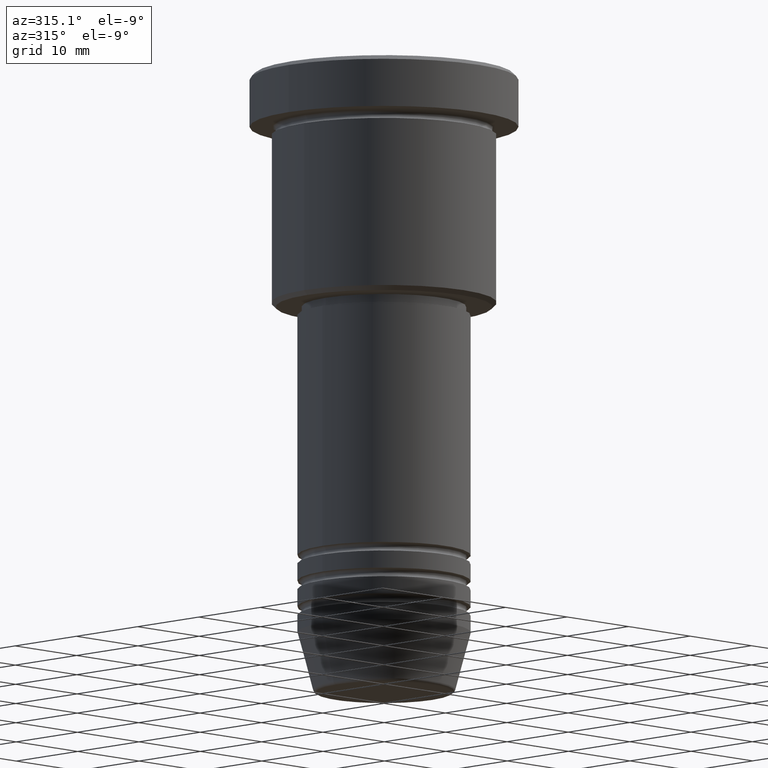
[diagram: clean part render]
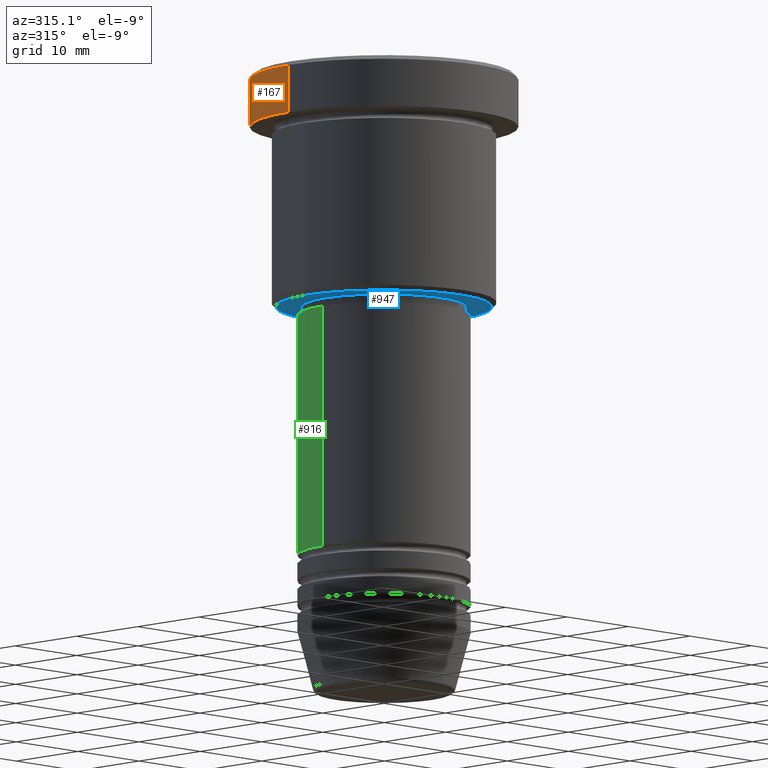
[diagram: same view with three faces highlighted in distinct colors, each labeled with its STEP entity id]
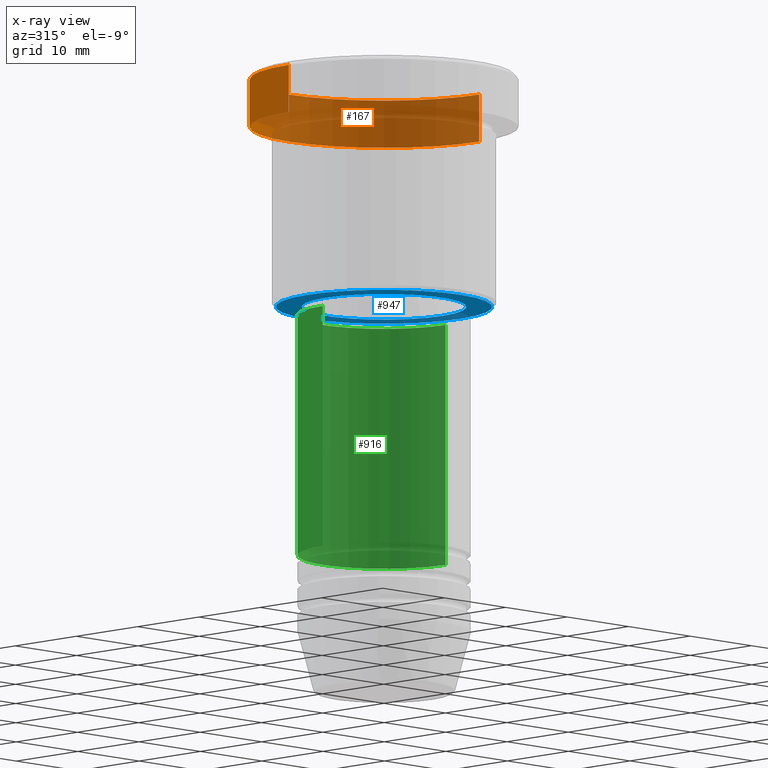
[diagram: x-ray of the same camera — body ghosted, the three highlighted faces saturated]
A machine part, auxiliary view with three faces highlighted in distinct colors.
The next image is the same camera in x-ray (body ghosted, the three faces saturated) — at least one of them is partly hidden behind the body in this view.
Their STEP definitions:

[orange] entity #167 — the highlighted cylindrical surface (partial cylindrical patch) has radius 15.5 mm, axis along (-0, -0, 1).
#38 = ORIENTED_EDGE ( 'NONE', *, *, #403, .T. ) ;
#67 = CARTESIAN_POINT ( 'NONE',  ( 15.50000000000000000, 0.000000000000000000, -5.999999999999995559 ) ) ;
#93 = LINE ( 'NONE', #626, #1179 ) ;
#115 = DIRECTION ( 'NONE',  ( 1.000000000000000000, 0.000000000000000000, 0.000000000000000000 ) ) ;
#138 = AXIS2_PLACEMENT_3D ( 'NONE', #975, #621, #1172 ) ;
#155 = AXIS2_PLACEMENT_3D ( 'NONE', #1090, #784, #320 ) ;
#167 = ADVANCED_FACE ( 'NONE', ( #1012 ), #282, .T. ) ;
#277 = CARTESIAN_POINT ( 'NONE',  ( 0.000000000000000000, 0.000000000000000000, 0.000000000000000000 ) ) ;
#282 = CYLINDRICAL_SURFACE ( 'NONE', #454, 15.50000000000000000 ) ;
#320 = DIRECTION ( 'NONE',  ( 1.000000000000000000, 0.000000000000000000, 0.000000000000000000 ) ) ;
#403 = EDGE_CURVE ( 'NONE', #406, #517, #709, .T. ) ;
#406 = VERTEX_POINT ( 'NONE', #67 ) ;
#407 = CARTESIAN_POINT ( 'NONE',  ( 15.50000000000000000, 0.000000000000000000, -0.5000000000000125455 ) ) ;
#448 = DIRECTION ( 'NONE',  ( -0.000000000000000000, -0.000000000000000000, 1.000000000000000000 ) ) ;
#454 = AXIS2_PLACEMENT_3D ( 'NONE', #277, #652, #115 ) ;
#484 = CARTESIAN_POINT ( 'NONE',  ( -15.50000000000000000, 1.898202538678397557E-15, -0.5000000000000125455 ) ) ;
#504 = EDGE_CURVE ( 'NONE', #1109, #1152, #672, .T. ) ;
#517 = VERTEX_POINT ( 'NONE', #1043 ) ;
#534 = ORIENTED_EDGE ( 'NONE', *, *, #927, .T. ) ;
#566 = ORIENTED_EDGE ( 'NONE', *, *, #731, .F. ) ;
#615 = CARTESIAN_POINT ( 'NONE',  ( 15.50000000000000000, 0.000000000000000000, 0.000000000000000000 ) ) ;
#621 = DIRECTION ( 'NONE',  ( -0.000000000000000000, -0.000000000000000000, 1.000000000000000000 ) ) ;
#626 = CARTESIAN_POINT ( 'NONE',  ( -15.50000000000000000, 1.898202538678397557E-15, 0.000000000000000000 ) ) ;
#649 = ORIENTED_EDGE ( 'NONE', *, *, #504, .T. ) ;
#652 = DIRECTION ( 'NONE',  ( -0.000000000000000000, -0.000000000000000000, 1.000000000000000000 ) ) ;
#672 = CIRCLE ( 'NONE', #155, 15.50000000000000000 ) ;
#709 = CIRCLE ( 'NONE', #138, 15.50000000000000000 ) ;
#731 = EDGE_CURVE ( 'NONE', #406, #1152, #783, .T. ) ;
#762 = VECTOR ( 'NONE', #948, 1000.000000000000000 ) ;
#783 = LINE ( 'NONE', #615, #762 ) ;
#784 = DIRECTION ( 'NONE',  ( 0.000000000000000000, 0.000000000000000000, -1.000000000000000000 ) ) ;
#911 = EDGE_LOOP ( 'NONE', ( #38, #534, #649, #566 ) ) ;
#927 = EDGE_CURVE ( 'NONE', #517, #1109, #93, .T. ) ;
#948 = DIRECTION ( 'NONE',  ( -0.000000000000000000, -0.000000000000000000, 1.000000000000000000 ) ) ;
#975 = CARTESIAN_POINT ( 'NONE',  ( 0.000000000000000000, 0.000000000000000000, -5.999999999999995559 ) ) ;
#1012 = FACE_OUTER_BOUND ( 'NONE', #911, .T. ) ;
#1043 = CARTESIAN_POINT ( 'NONE',  ( -15.50000000000000000, 1.898202538678397557E-15, -5.999999999999995559 ) ) ;
#1090 = CARTESIAN_POINT ( 'NONE',  ( 0.000000000000000000, 0.000000000000000000, -0.5000000000000125455 ) ) ;
#1109 = VERTEX_POINT ( 'NONE', #484 ) ;
#1152 = VERTEX_POINT ( 'NONE', #407 ) ;
#1172 = DIRECTION ( 'NONE',  ( 1.000000000000000000, 0.000000000000000000, 0.000000000000000000 ) ) ;
#1179 = VECTOR ( 'NONE', #448, 1000.000000000000000 ) ;

[blue] entity #947 — the highlighted planar face has unit normal (0, 0, -1).
#36 = CARTESIAN_POINT ( 'NONE',  ( 0.000000000000000000, 0.000000000000000000, -27.00000000000000355 ) ) ;
#43 = AXIS2_PLACEMENT_3D ( 'NONE', #654, #1181, #675 ) ;
#82 = CARTESIAN_POINT ( 'NONE',  ( 0.000000000000000000, 13.00000000000000000, -27.00000000000000355 ) ) ;
#207 = AXIS2_PLACEMENT_3D ( 'NONE', #82, #819, #343 ) ;
#218 = ORIENTED_EDGE ( 'NONE', *, *, #1128, .T. ) ;
#242 = EDGE_CURVE ( 'NONE', #875, #362, #821, .T. ) ;
#280 = CARTESIAN_POINT ( 'NONE',  ( -12.49999999999998401, 1.561424668912874125E-15, -27.00000000000000355 ) ) ;
#300 = DIRECTION ( 'NONE',  ( 1.000000000000000000, 0.000000000000000000, 0.000000000000000000 ) ) ;
#343 = DIRECTION ( 'NONE',  ( -1.000000000000000000, 0.000000000000000000, -0.000000000000000000 ) ) ;
#348 = CARTESIAN_POINT ( 'NONE',  ( 9.500000000000000000, 0.000000000000000000, -27.00000000000000355 ) ) ;
#361 = FACE_BOUND ( 'NONE', #1110, .T. ) ;
#362 = VERTEX_POINT ( 'NONE', #770 ) ;
#374 = EDGE_CURVE ( 'NONE', #840, #832, #472, .T. ) ;
#397 = EDGE_LOOP ( 'NONE', ( #550, #449 ) ) ;
#402 = DIRECTION ( 'NONE',  ( 0.000000000000000000, 0.000000000000000000, -1.000000000000000000 ) ) ;
#449 = ORIENTED_EDGE ( 'NONE', *, *, #374, .T. ) ;
#456 = AXIS2_PLACEMENT_3D ( 'NONE', #1066, #896, #1075 ) ;
#472 = CIRCLE ( 'NONE', #43, 12.49999999999998401 ) ;
#491 = AXIS2_PLACEMENT_3D ( 'NONE', #36, #1122, #300 ) ;
#498 = DIRECTION ( 'NONE',  ( -1.000000000000000000, 0.000000000000000000, 0.000000000000000000 ) ) ;
#533 = PLANE ( 'NONE',  #207 ) ;
#550 = ORIENTED_EDGE ( 'NONE', *, *, #1142, .T. ) ;
#639 = CIRCLE ( 'NONE', #456, 9.500000000000000000 ) ;
#654 = CARTESIAN_POINT ( 'NONE',  ( 0.000000000000000000, 0.000000000000000000, -27.00000000000000355 ) ) ;
#675 = DIRECTION ( 'NONE',  ( -1.000000000000000000, 0.000000000000000000, 0.000000000000000000 ) ) ;
#691 = CIRCLE ( 'NONE', #1004, 12.49999999999998401 ) ;
#770 = CARTESIAN_POINT ( 'NONE',  ( -9.500000000000000000, 1.163414459189985485E-15, -27.00000000000000355 ) ) ;
#819 = DIRECTION ( 'NONE',  ( 0.000000000000000000, 0.000000000000000000, -1.000000000000000000 ) ) ;
#821 = CIRCLE ( 'NONE', #491, 9.500000000000000000 ) ;
#832 = VERTEX_POINT ( 'NONE', #920 ) ;
#840 = VERTEX_POINT ( 'NONE', #280 ) ;
#875 = VERTEX_POINT ( 'NONE', #348 ) ;
#895 = ORIENTED_EDGE ( 'NONE', *, *, #242, .T. ) ;
#896 = DIRECTION ( 'NONE',  ( -0.000000000000000000, -0.000000000000000000, 1.000000000000000000 ) ) ;
#917 = FACE_OUTER_BOUND ( 'NONE', #397, .T. ) ;
#920 = CARTESIAN_POINT ( 'NONE',  ( 12.49999999999998401, 0.000000000000000000, -27.00000000000000355 ) ) ;
#947 = ADVANCED_FACE ( 'NONE', ( #917, #361 ), #533, .T. ) ;
#962 = CARTESIAN_POINT ( 'NONE',  ( 0.000000000000000000, 0.000000000000000000, -27.00000000000000355 ) ) ;
#1004 = AXIS2_PLACEMENT_3D ( 'NONE', #962, #402, #498 ) ;
#1066 = CARTESIAN_POINT ( 'NONE',  ( 0.000000000000000000, 0.000000000000000000, -27.00000000000000355 ) ) ;
#1075 = DIRECTION ( 'NONE',  ( 1.000000000000000000, 0.000000000000000000, 0.000000000000000000 ) ) ;
#1110 = EDGE_LOOP ( 'NONE', ( #895, #218 ) ) ;
#1122 = DIRECTION ( 'NONE',  ( -0.000000000000000000, -0.000000000000000000, 1.000000000000000000 ) ) ;
#1128 = EDGE_CURVE ( 'NONE', #362, #875, #639, .T. ) ;
#1142 = EDGE_CURVE ( 'NONE', #832, #840, #691, .T. ) ;
#1181 = DIRECTION ( 'NONE',  ( 0.000000000000000000, 0.000000000000000000, -1.000000000000000000 ) ) ;

[green] entity #916 — the highlighted cylindrical surface (partial cylindrical patch) has radius 10 mm, axis along (-0, -0, 1).
#6 = DIRECTION ( 'NONE',  ( -0.000000000000000000, -0.000000000000000000, 1.000000000000000000 ) ) ;
#8 = CARTESIAN_POINT ( 'NONE',  ( 0.000000000000000000, 0.000000000000000000, -28.00000000000000355 ) ) ;
#28 = AXIS2_PLACEMENT_3D ( 'NONE', #141, #676, #980 ) ;
#64 = CIRCLE ( 'NONE', #28, 10.00000000000000000 ) ;
#92 = DIRECTION ( 'NONE',  ( -0.000000000000000000, -0.000000000000000000, 1.000000000000000000 ) ) ;
#110 = DIRECTION ( 'NONE',  ( 1.000000000000000000, 0.000000000000000000, 0.000000000000000000 ) ) ;
#113 = VERTEX_POINT ( 'NONE', #684 ) ;
#118 = DIRECTION ( 'NONE',  ( 1.000000000000000000, 0.000000000000000000, 0.000000000000000000 ) ) ;
#123 = VECTOR ( 'NONE', #6, 1000.000000000000000 ) ;
#141 = CARTESIAN_POINT ( 'NONE',  ( 0.000000000000000000, 0.000000000000000000, -55.99999999999997868 ) ) ;
#142 = AXIS2_PLACEMENT_3D ( 'NONE', #8, #716, #118 ) ;
#166 = VERTEX_POINT ( 'NONE', #736 ) ;
#182 = LINE ( 'NONE', #1183, #1018 ) ;
#269 = FACE_OUTER_BOUND ( 'NONE', #309, .T. ) ;
#309 = EDGE_LOOP ( 'NONE', ( #846, #931, #828, #441 ) ) ;
#341 = VERTEX_POINT ( 'NONE', #396 ) ;
#342 = LINE ( 'NONE', #1093, #123 ) ;
#396 = CARTESIAN_POINT ( 'NONE',  ( -10.00000000000000000, 1.224646799147353256E-15, -55.99999999999997868 ) ) ;
#441 = ORIENTED_EDGE ( 'NONE', *, *, #459, .F. ) ;
#459 = EDGE_CURVE ( 'NONE', #166, #113, #182, .T. ) ;
#464 = EDGE_CURVE ( 'NONE', #341, #1143, #342, .T. ) ;
#614 = EDGE_CURVE ( 'NONE', #166, #341, #64, .T. ) ;
#674 = AXIS2_PLACEMENT_3D ( 'NONE', #826, #1113, #110 ) ;
#676 = DIRECTION ( 'NONE',  ( -0.000000000000000000, -0.000000000000000000, 1.000000000000000000 ) ) ;
#684 = CARTESIAN_POINT ( 'NONE',  ( 10.00000000000000000, 0.000000000000000000, -28.00000000000000355 ) ) ;
#696 = CARTESIAN_POINT ( 'NONE',  ( -10.00000000000000000, 1.224646799147353256E-15, -28.00000000000000355 ) ) ;
#716 = DIRECTION ( 'NONE',  ( -0.000000000000000000, -0.000000000000000000, 1.000000000000000000 ) ) ;
#736 = CARTESIAN_POINT ( 'NONE',  ( 10.00000000000000000, 0.000000000000000000, -55.99999999999997868 ) ) ;
#826 = CARTESIAN_POINT ( 'NONE',  ( 0.000000000000000000, 0.000000000000000000, 0.000000000000000000 ) ) ;
#828 = ORIENTED_EDGE ( 'NONE', *, *, #953, .F. ) ;
#846 = ORIENTED_EDGE ( 'NONE', *, *, #614, .T. ) ;
#916 = ADVANCED_FACE ( 'NONE', ( #269 ), #1007, .T. ) ;
#931 = ORIENTED_EDGE ( 'NONE', *, *, #464, .T. ) ;
#953 = EDGE_CURVE ( 'NONE', #113, #1143, #985, .T. ) ;
#980 = DIRECTION ( 'NONE',  ( 1.000000000000000000, 0.000000000000000000, 0.000000000000000000 ) ) ;
#985 = CIRCLE ( 'NONE', #142, 10.00000000000000000 ) ;
#1007 = CYLINDRICAL_SURFACE ( 'NONE', #674, 10.00000000000000000 ) ;
#1018 = VECTOR ( 'NONE', #92, 1000.000000000000000 ) ;
#1093 = CARTESIAN_POINT ( 'NONE',  ( -10.00000000000000000, 1.224646799147353256E-15, 0.000000000000000000 ) ) ;
#1113 = DIRECTION ( 'NONE',  ( -0.000000000000000000, -0.000000000000000000, 1.000000000000000000 ) ) ;
#1143 = VERTEX_POINT ( 'NONE', #696 ) ;
#1183 = CARTESIAN_POINT ( 'NONE',  ( 10.00000000000000000, 0.000000000000000000, 0.000000000000000000 ) ) ;